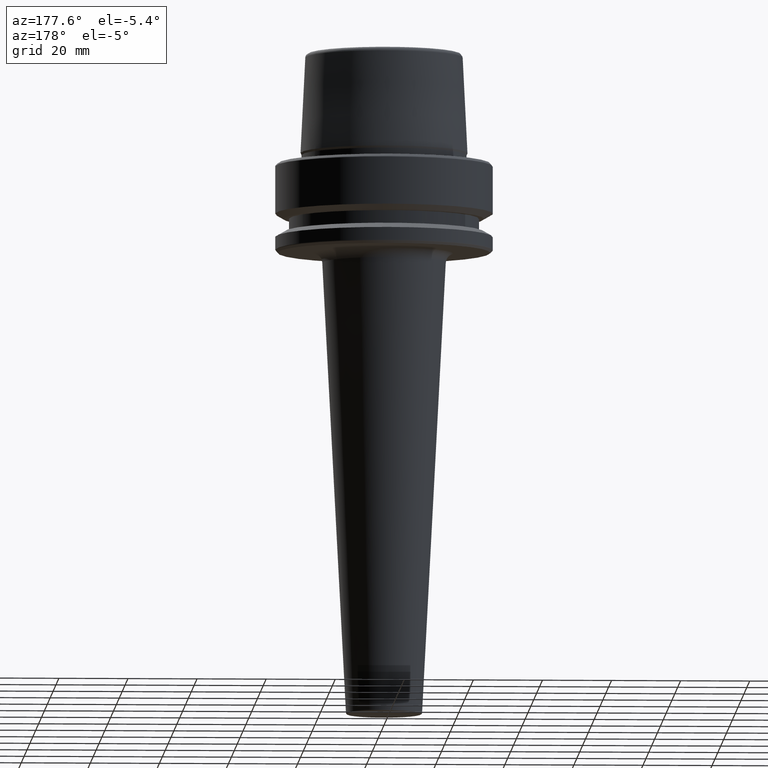
[diagram: clean part render]
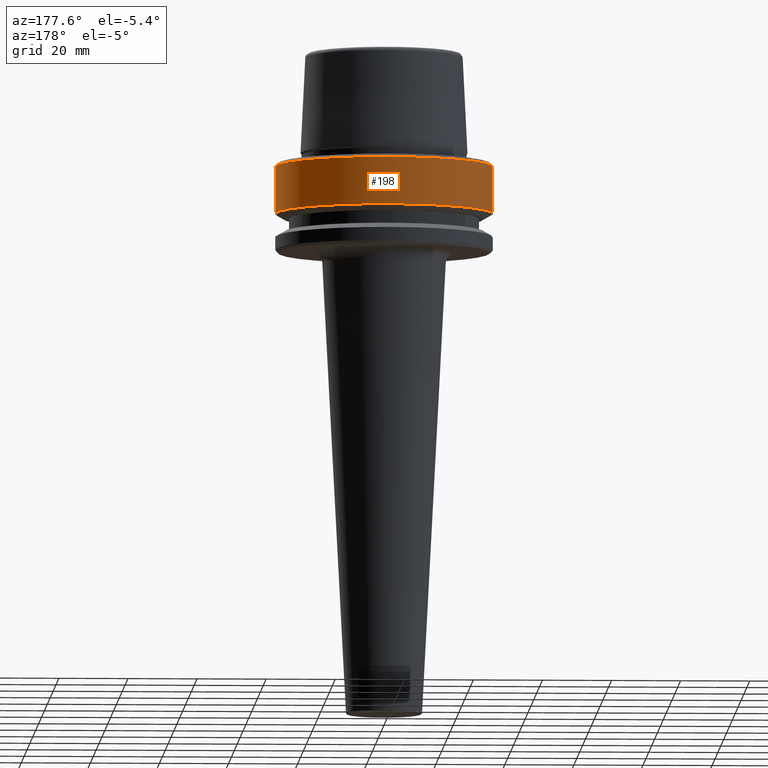
[diagram: same view with one face highlighted and labeled with its STEP entity id]
A machine part, auxiliary view. The second image highlights one B-rep face of the part: STEP entity #198.
In plain terms, the highlighted cylindrical surface (partial cylindrical patch) has radius 31.5 mm, axis along (-0, -0, 1).
Its self-contained STEP definition (entity closure, byte-faithful):
#15 = DIRECTION ( 'NONE',  ( -0.0000000000000000000, -0.0000000000000000000, 1.000000000000000000 ) ) ;
#20 = CARTESIAN_POINT ( 'NONE',  ( 0.0000000000000000000, 0.0000000000000000000, -0.9656854249492363700 ) ) ;
#28 = CARTESIAN_POINT ( 'NONE',  ( -31.50000000000000700, 3.857637417314163500E-015, -0.9656854249492363700 ) ) ;
#53 = VECTOR ( 'NONE', #508, 1000.000000000000000 ) ;
#65 = DIRECTION ( 'NONE',  ( 1.000000000000000000, 0.0000000000000000000, 0.0000000000000000000 ) ) ;
#90 = VERTEX_POINT ( 'NONE', #743 ) ;
#198 = ADVANCED_FACE ( 'NONE', ( #788 ), #1130, .T. ) ;
#295 = VERTEX_POINT ( 'NONE', #445 ) ;
#300 = AXIS2_PLACEMENT_3D ( 'NONE', #20, #15, #865 ) ;
#319 = DIRECTION ( 'NONE',  ( 1.000000000000000000, 0.0000000000000000000, 0.0000000000000000000 ) ) ;
#342 = AXIS2_PLACEMENT_3D ( 'NONE', #711, #722, #319 ) ;
#347 = LINE ( 'NONE', #973, #53 ) ;
#356 = ORIENTED_EDGE ( 'NONE', *, *, #443, .F. ) ;
#371 = VERTEX_POINT ( 'NONE', #515 ) ;
#414 = EDGE_CURVE ( 'NONE', #371, #90, #431, .T. ) ;
#431 = CIRCLE ( 'NONE', #1216, 31.50000000000000000 ) ;
#443 = EDGE_CURVE ( 'NONE', #371, #295, #703, .T. ) ;
#445 = CARTESIAN_POINT ( 'NONE',  ( 31.50000000000000700, 0.0000000000000000000, -0.9656854249492363700 ) ) ;
#476 = DIRECTION ( 'NONE',  ( -0.0000000000000000000, -0.0000000000000000000, 1.000000000000000000 ) ) ;
#507 = EDGE_CURVE ( 'NONE', #295, #624, #880, .T. ) ;
#508 = DIRECTION ( 'NONE',  ( -0.0000000000000000000, -0.0000000000000000000, 1.000000000000000000 ) ) ;
#515 = CARTESIAN_POINT ( 'NONE',  ( 31.50000000000000000, 0.0000000000000000000, -14.62250092524070100 ) ) ;
#525 = ORIENTED_EDGE ( 'NONE', *, *, #507, .F. ) ;
#624 = VERTEX_POINT ( 'NONE', #28 ) ;
#676 = EDGE_CURVE ( 'NONE', #90, #624, #347, .T. ) ;
#703 = LINE ( 'NONE', #851, #855 ) ;
#711 = CARTESIAN_POINT ( 'NONE',  ( 0.0000000000000000000, 0.0000000000000000000, 78.96908074195309300 ) ) ;
#722 = DIRECTION ( 'NONE',  ( -0.0000000000000000000, -0.0000000000000000000, 1.000000000000000000 ) ) ;
#743 = CARTESIAN_POINT ( 'NONE',  ( -31.50000000000000000, 3.857637417314162700E-015, -14.62250092524070100 ) ) ;
#784 = ORIENTED_EDGE ( 'NONE', *, *, #414, .T. ) ;
#788 = FACE_OUTER_BOUND ( 'NONE', #793, .T. ) ;
#793 = EDGE_LOOP ( 'NONE', ( #784, #941, #525, #356 ) ) ;
#851 = CARTESIAN_POINT ( 'NONE',  ( 31.50000000000000000, 0.0000000000000000000, 78.96908074195309300 ) ) ;
#855 = VECTOR ( 'NONE', #476, 1000.000000000000000 ) ;
#865 = DIRECTION ( 'NONE',  ( 1.000000000000000000, 0.0000000000000000000, 0.0000000000000000000 ) ) ;
#868 = DIRECTION ( 'NONE',  ( -0.0000000000000000000, -0.0000000000000000000, 1.000000000000000000 ) ) ;
#880 = CIRCLE ( 'NONE', #300, 31.50000000000000700 ) ;
#941 = ORIENTED_EDGE ( 'NONE', *, *, #676, .T. ) ;
#942 = CARTESIAN_POINT ( 'NONE',  ( 0.0000000000000000000, 0.0000000000000000000, -14.62250092524070100 ) ) ;
#973 = CARTESIAN_POINT ( 'NONE',  ( -31.50000000000000000, 3.857637417314162700E-015, 78.96908074195309300 ) ) ;
#1130 = CYLINDRICAL_SURFACE ( 'NONE', #342, 31.50000000000000000 ) ;
#1216 = AXIS2_PLACEMENT_3D ( 'NONE', #942, #868, #65 ) ;